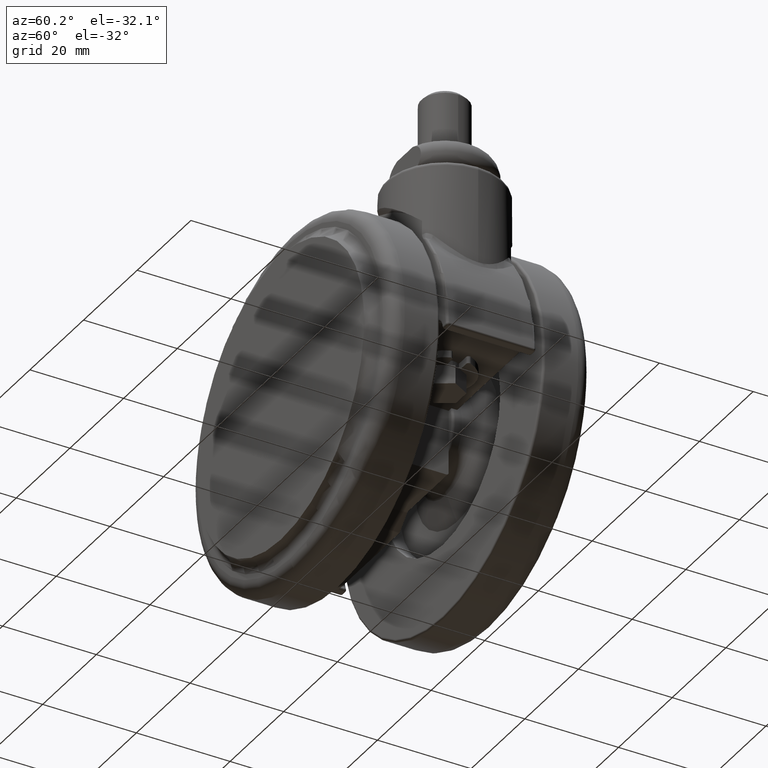
[diagram: clean part render]
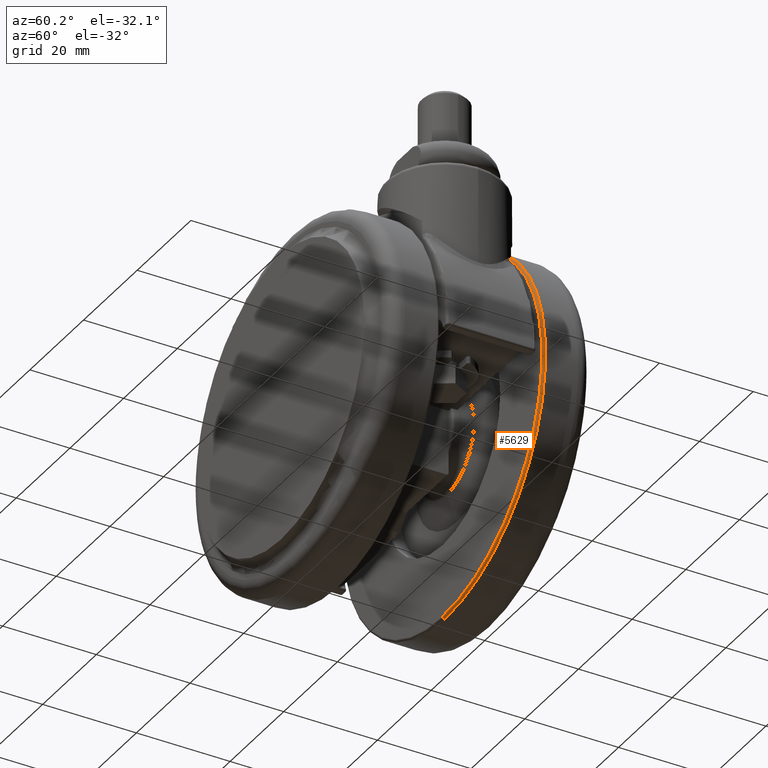
[diagram: same view with one face highlighted and labeled with its STEP entity id]
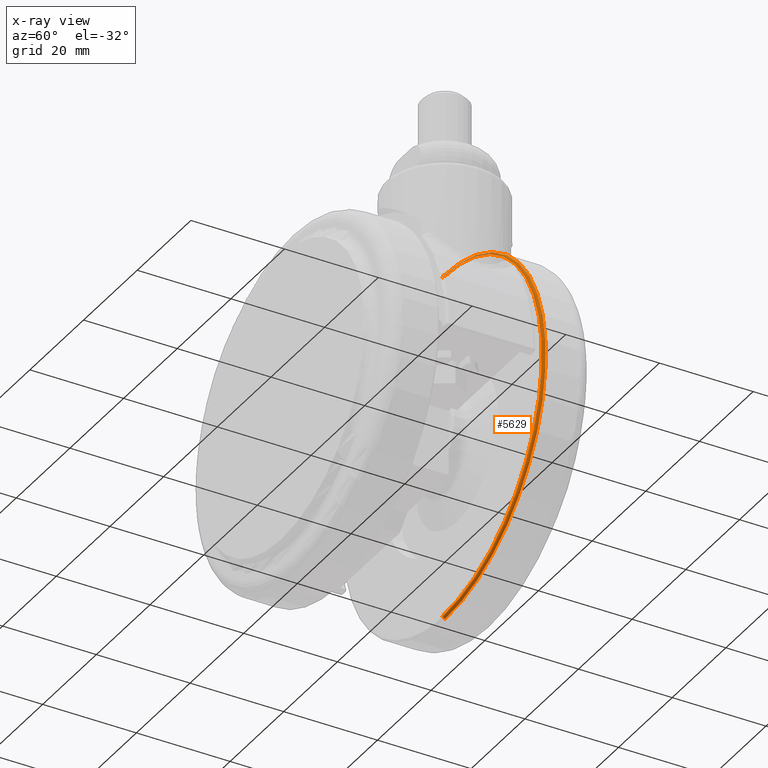
[diagram: x-ray of the same camera — body ghosted, the highlighted face saturated]
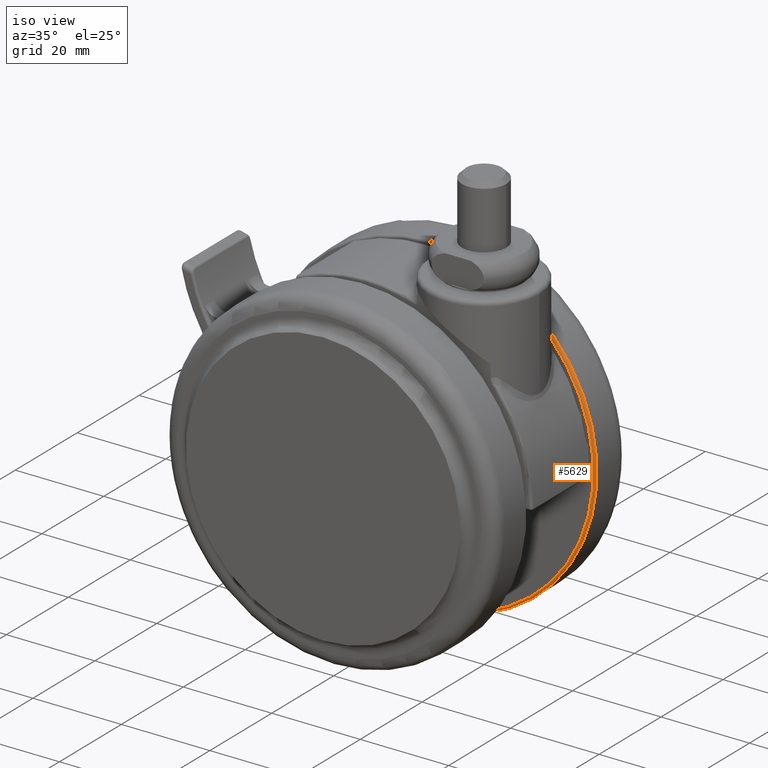
[diagram: same view with one face highlighted and labeled with its STEP entity id]
A machine part, auxiliary view. The second image highlights one B-rep face of the part: STEP entity #5629.
The next image is the same camera in x-ray: the body ghosted, the highlighted face saturated — about 5% of this face is hidden behind the body in this view.
A second angle (iso view) of the same face is appended — the face is thin or edge-on in the first view.
In plain terms, the highlighted toroidal blend (fillet) surface has major radius 37 mm and minor (blend) radius 0.5 mm.
Its self-contained STEP definition (entity closure, byte-faithful):
#114 = CARTESIAN_POINT ( 'NONE',  ( -20.00000000000000000, 11.50000000000000000, -78.00000000000000000 ) ) ;
#151 = EDGE_CURVE ( 'NONE', #4426, #4438, #6627, .T. ) ;
#1097 = VERTEX_POINT ( 'NONE', #2074 ) ;
#1165 = CIRCLE ( 'NONE', #6811, 0.5000000000000004400 ) ;
#1191 = DIRECTION ( 'NONE',  ( 0.0000000000000000000, 0.0000000000000000000, -1.000000000000000000 ) ) ;
#1759 = DIRECTION ( 'NONE',  ( 1.000000000000000000, -1.505161159488250100E-015, 0.0000000000000000000 ) ) ;
#1848 = AXIS2_PLACEMENT_3D ( 'NONE', #3878, #2510, #1191 ) ;
#1985 = ORIENTED_EDGE ( 'NONE', *, *, #3070, .F. ) ;
#2074 = CARTESIAN_POINT ( 'NONE',  ( -20.00000000000000000, 11.00000000000000000, -77.50000000000000000 ) ) ;
#2319 = CARTESIAN_POINT ( 'NONE',  ( -20.00000000000000000, 11.50000000000000000, -40.50000000000000000 ) ) ;
#2510 = DIRECTION ( 'NONE',  ( 1.505161159488250100E-015, 1.000000000000000000, 0.0000000000000000000 ) ) ;
#2560 = CARTESIAN_POINT ( 'NONE',  ( -19.99999999999998200, 11.50000000000000000, -3.000000000000002700 ) ) ;
#2787 = AXIS2_PLACEMENT_3D ( 'NONE', #7364, #3321, #8023 ) ;
#2997 = DIRECTION ( 'NONE',  ( 0.0000000000000000000, 0.0000000000000000000, -1.000000000000000000 ) ) ;
#3039 = ORIENTED_EDGE ( 'NONE', *, *, #4015, .T. ) ;
#3070 = EDGE_CURVE ( 'NONE', #1097, #4426, #8232, .T. ) ;
#3318 = AXIS2_PLACEMENT_3D ( 'NONE', #6772, #6539, #8679 ) ;
#3321 = DIRECTION ( 'NONE',  ( -1.505161159488250100E-015, -1.000000000000000000, 0.0000000000000000000 ) ) ;
#3878 = CARTESIAN_POINT ( 'NONE',  ( -20.00000000000000000, 11.50000000000000000, -40.50000000000000000 ) ) ;
#4015 = EDGE_CURVE ( 'NONE', #1097, #6434, #1165, .T. ) ;
#4426 = VERTEX_POINT ( 'NONE', #7918 ) ;
#4438 = VERTEX_POINT ( 'NONE', #2560 ) ;
#5369 = ORIENTED_EDGE ( 'NONE', *, *, #151, .F. ) ;
#5629 = ADVANCED_FACE ( 'NONE', ( #8248 ), #8464, .T. ) ;
#5803 = CARTESIAN_POINT ( 'NONE',  ( -20.00000000000000000, 11.50000000000000000, -77.50000000000000000 ) ) ;
#5991 = EDGE_LOOP ( 'NONE', ( #5369, #1985, #3039, #5996 ) ) ;
#5996 = ORIENTED_EDGE ( 'NONE', *, *, #8273, .T. ) ;
#6434 = VERTEX_POINT ( 'NONE', #114 ) ;
#6485 = DIRECTION ( 'NONE',  ( 0.0000000000000000000, 1.000000000000000000, 0.0000000000000000000 ) ) ;
#6539 = DIRECTION ( 'NONE',  ( -1.000000000000000000, 1.505161159488250100E-015, -1.224646799147353200E-016 ) ) ;
#6627 = CIRCLE ( 'NONE', #3318, 0.5000000000000004400 ) ;
#6772 = CARTESIAN_POINT ( 'NONE',  ( -20.00000000000000400, 11.50000000000000000, -3.500000000000003100 ) ) ;
#6811 = AXIS2_PLACEMENT_3D ( 'NONE', #5803, #1759, #6485 ) ;
#7047 = DIRECTION ( 'NONE',  ( -1.505161159488250100E-015, -1.000000000000000000, 0.0000000000000000000 ) ) ;
#7364 = CARTESIAN_POINT ( 'NONE',  ( -20.00000000000000000, 11.00000000000000000, -40.50000000000000000 ) ) ;
#7918 = CARTESIAN_POINT ( 'NONE',  ( -20.00000000000000400, 11.00000000000000000, -3.500000000000003100 ) ) ;
#8023 = DIRECTION ( 'NONE',  ( 0.0000000000000000000, 0.0000000000000000000, -1.000000000000000000 ) ) ;
#8232 = CIRCLE ( 'NONE', #2787, 37.00000000000000000 ) ;
#8248 = FACE_OUTER_BOUND ( 'NONE', #5991, .T. ) ;
#8273 = EDGE_CURVE ( 'NONE', #6434, #4438, #8741, .T. ) ;
#8464 = TOROIDAL_SURFACE ( 'NONE', #1848, 37.00000000000000000, 0.5000000000000000000 ) ;
#8474 = AXIS2_PLACEMENT_3D ( 'NONE', #2319, #7047, #2997 ) ;
#8679 = DIRECTION ( 'NONE',  ( 0.0000000000000000000, -1.000000000000000000, 0.0000000000000000000 ) ) ;
#8741 = CIRCLE ( 'NONE', #8474, 37.50000000000000000 ) ;